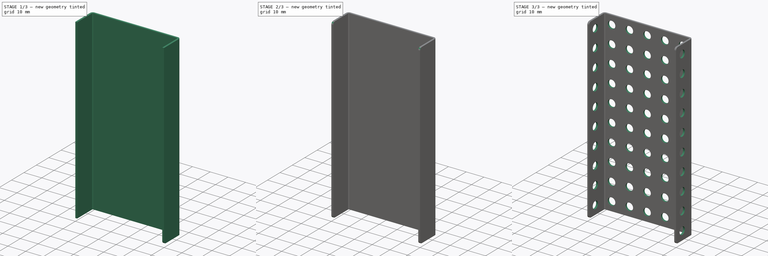
[diagram: build sequence overview — one tinted view per stage of 3, left to right]
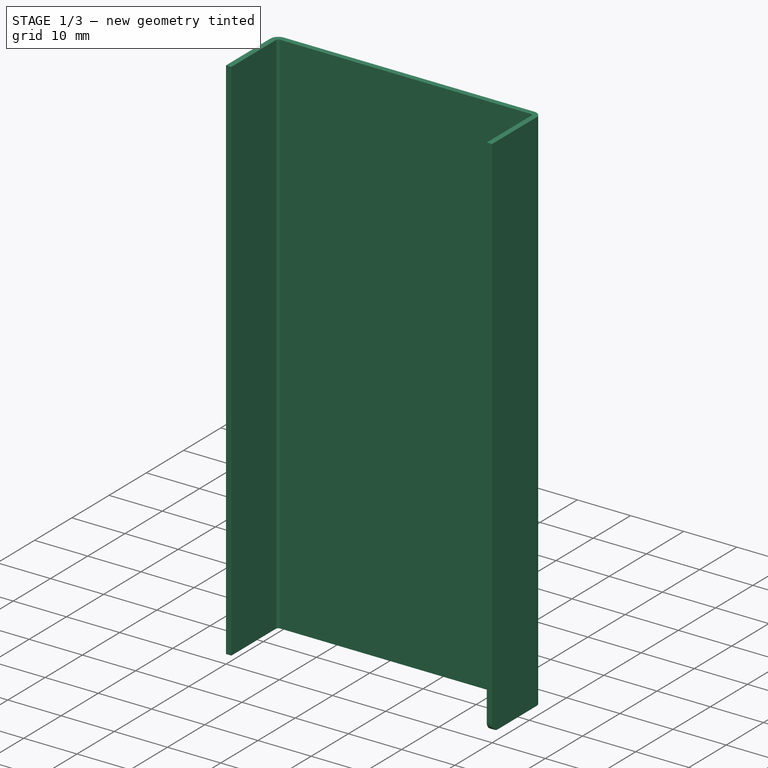
[diagram: stage 1 of 3 — iso view after this stage's code; geometry added in this stage tinted green]
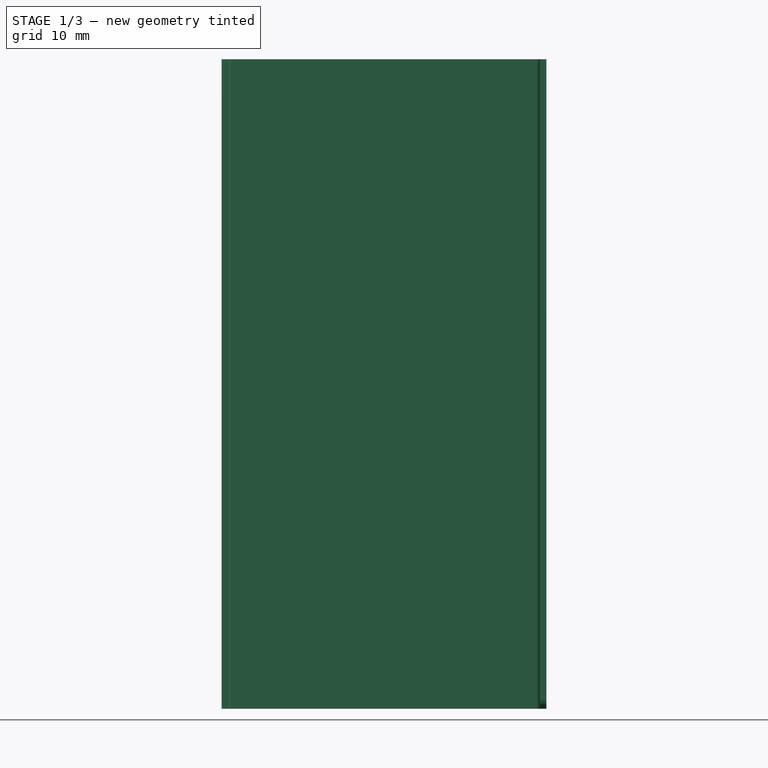
[diagram: stage 1 of 3 — front view after this stage's code; geometry added in this stage tinted green]
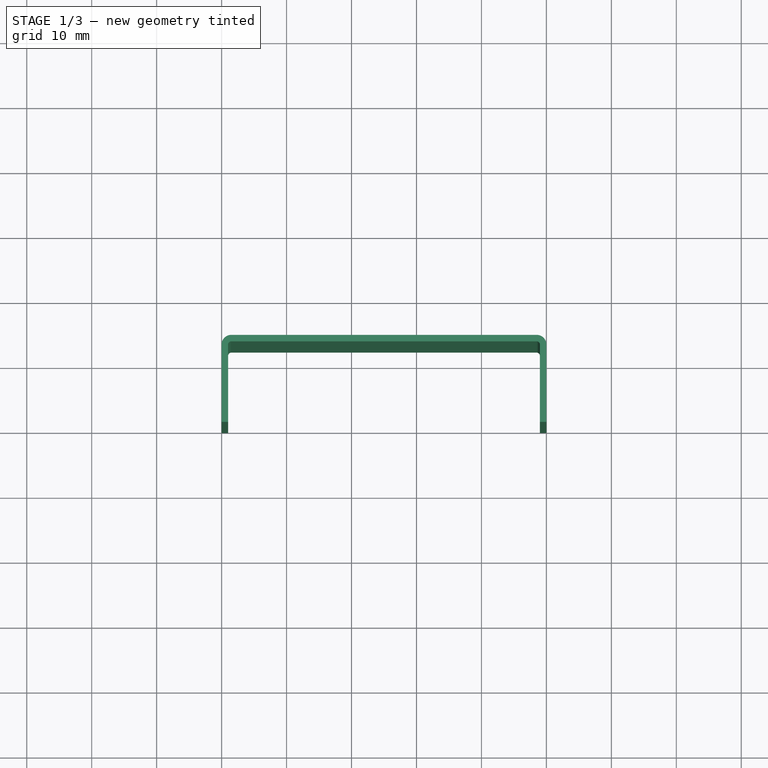
[diagram: stage 1 of 3 — top view after this stage's code; geometry added in this stage tinted green]
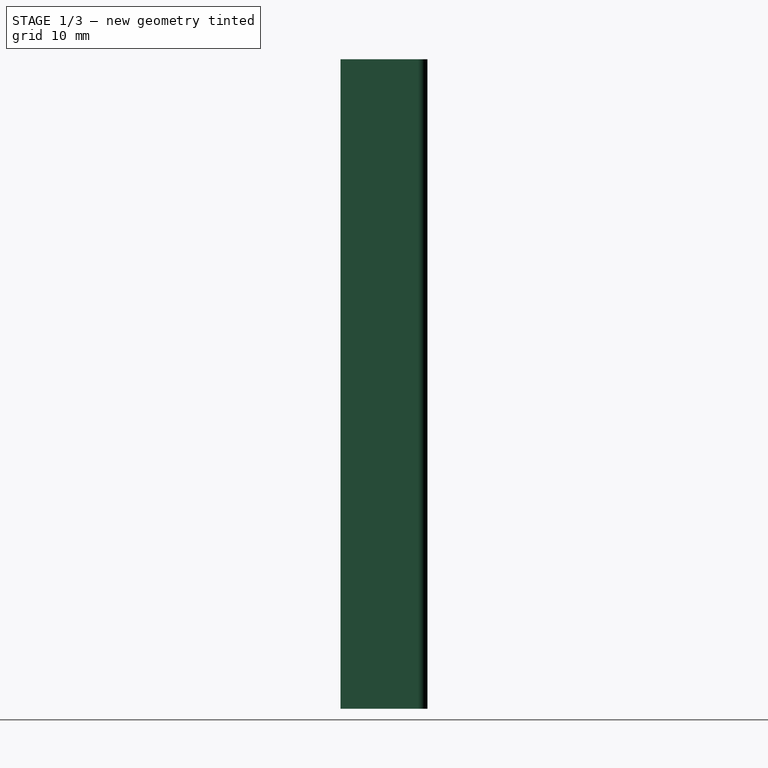
[diagram: stage 1 of 3 — right view after this stage's code; geometry added in this stage tinted green]
FCSTD DOCUMENT  (FreeCAD 0.16RUnknown)
Label: skoba_1_10_1
License: All rights reserved
LicenseURL: http://en.wikipedia.org/wiki/All_rights_reserved
objects: PartDesign::Fillet×4, Sketcher::SketchObject×3, PartDesign::Pocket×2, PartDesign::Pad×1
note: 13 computed .brp shape members not serialized (recipe doc carries the construction recipe); baked Part::Feature solids carry a one-line shape summary decoded from their .brp

FEATURE [Sketcher::SketchObject] Sketch
  sketch-geometry (12):
    g0: LineSegment StartX=0 StartY=0 StartZ=0 EndX=0 EndY=11.9 EndZ=0
    g1: LineSegment StartX=1.5 StartY=13.4 StartZ=0 EndX=48.5 EndY=13.4 EndZ=0
    g2: LineSegment StartX=50 StartY=11.9 StartZ=0 EndX=50 EndY=0 EndZ=0
    g3: ArcOfCircle CenterX=1.5 CenterY=11.9 CenterZ=0 NormalX=0 NormalY=0 NormalZ=1 Radius=1.5 StartAngle=1.5708 EndAngle=3.14159
    g4: ArcOfCircle CenterX=48.5 CenterY=11.9 CenterZ=0 NormalX=0 NormalY=0 NormalZ=1 Radius=1.5 StartAngle=0 EndAngle=1.5708
    g5: LineSegment StartX=0 StartY=0 StartZ=0 EndX=1 EndY=0 EndZ=0
    g6: LineSegment StartX=1 StartY=0 StartZ=0 EndX=1 EndY=11.9 EndZ=0
    g7: LineSegment StartX=1.5 StartY=12.4 StartZ=0 EndX=48.5 EndY=12.4 EndZ=0
    g8: LineSegment StartX=49 StartY=11.9 StartZ=0 EndX=49 EndY=0 EndZ=0
    g9: LineSegment StartX=49 StartY=0 StartZ=0 EndX=50 EndY=0 EndZ=0
    g10: ArcOfCircle CenterX=1.5 CenterY=11.9 CenterZ=0 NormalX=0 NormalY=0 NormalZ=1 Radius=0.5 StartAngle=1.5708 EndAngle=3.14159
    g11: ArcOfCircle CenterX=48.5 CenterY=11.9 CenterZ=0 NormalX=0 NormalY=0 NormalZ=1 Radius=0.5 StartAngle=0 EndAngle=1.5708
  constraints (32):
    c: PointOnObject(g0,g-1)
    c: Vertical(g0)
    c: Horizontal(g1)
    c: PointOnObject(g2,g-1)
    c: Vertical(g2)
    c: Tangent(g0,g3) = 1.5708
    c: Tangent(g1,g3) = 1.5708
    c: Tangent(g1,g4) = 1.5708
    c: Tangent(g2,g4) = 1.5708
    c: Radius(g3) = 1.5
    c: Equal(g3,g4)
    c: DistanceX(g0,g2) = 50
    c: DistanceY(g2,g1) = 13.4
    c: Coincident(g0,g-1)
    c: Coincident(g5,g-1)
    c: PointOnObject(g5,g-1)
    c: Coincident(g5,g6)
    c: Vertical(g6)
    c: Horizontal(g7)
    c: Vertical(g8)
    c: Coincident(g8,g9)
    c: Horizontal(g9)
    c: Coincident(g9,g2)
    c: DistanceX(g5,g5) = 1
    c: DistanceX(g9,g9) = 1
    c: Tangent(g6,g10) = 1.5708
    c: Tangent(g7,g10) = 1.5708
    c: Radius(g10) = 0.5
    c: DistanceY(g7,g1) = 1
    c: Tangent(g7,g11) = 1.5708
    c: Tangent(g8,g11) = 1.5708
    c: Radius(g11) = 0.5
FEATURE [PartDesign::Pad] Pad
  Length = 100
  Length2 = 100
  Sketch = -> Sketch
  Type = 0
FEATURE [PartDesign::Fillet] Fillet
  Base = -> Pad [Edge18]
  Radius = 1.5
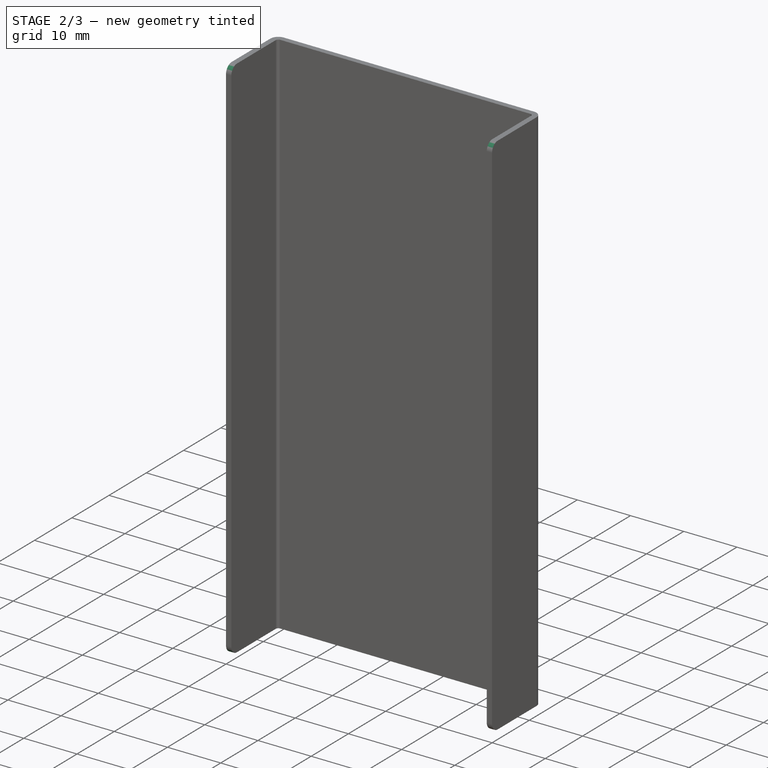
[diagram: stage 2 of 3 — iso view after this stage's code; geometry added in this stage tinted green]
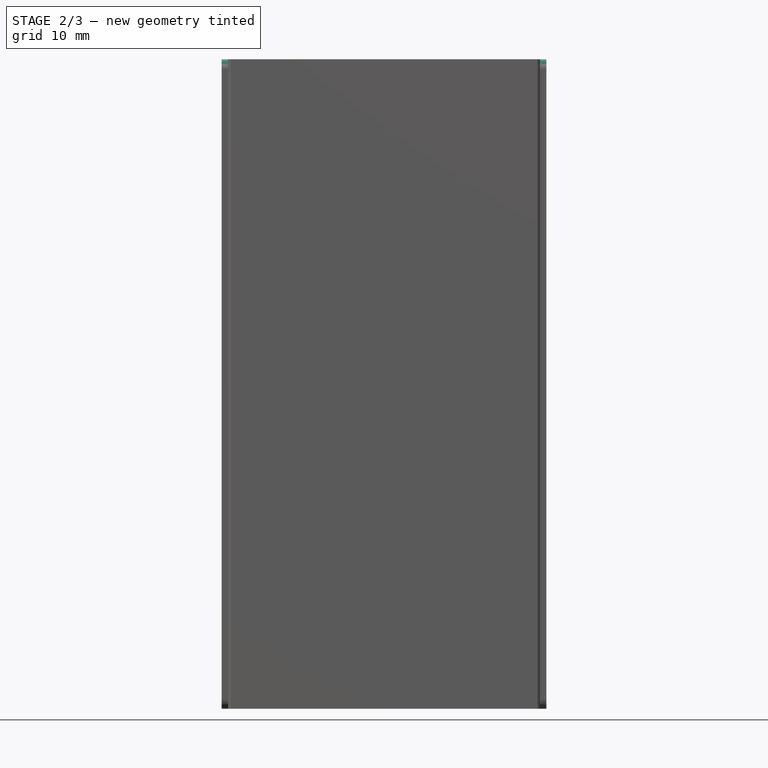
[diagram: stage 2 of 3 — front view after this stage's code; geometry added in this stage tinted green]
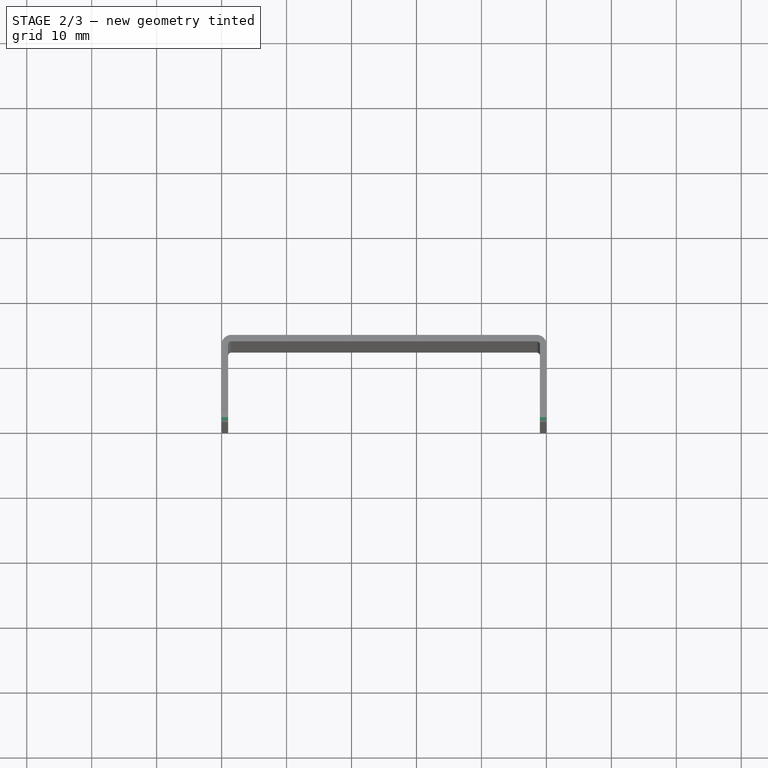
[diagram: stage 2 of 3 — top view after this stage's code; geometry added in this stage tinted green]
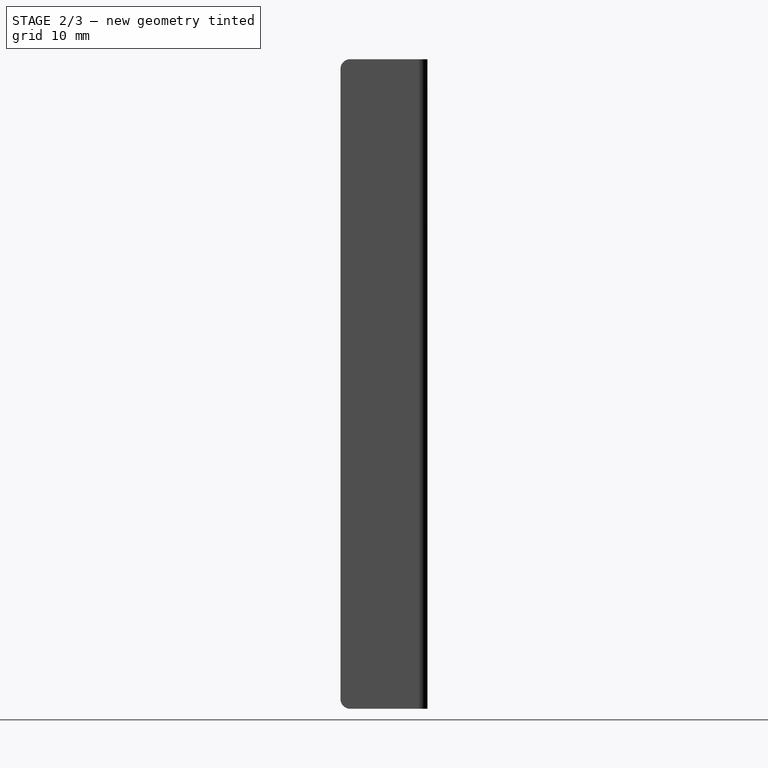
[diagram: stage 2 of 3 — right view after this stage's code; geometry added in this stage tinted green]
FEATURE [PartDesign::Fillet] Fillet001
  Base = -> Fillet [Edge29]
  Radius = 1.5
FEATURE [PartDesign::Fillet] Fillet002
  Base = -> Fillet001 [Edge42]
  Radius = 1.5
FEATURE [PartDesign::Fillet] Fillet003
  Base = -> Fillet002 [Edge22]
  Radius = 1.5
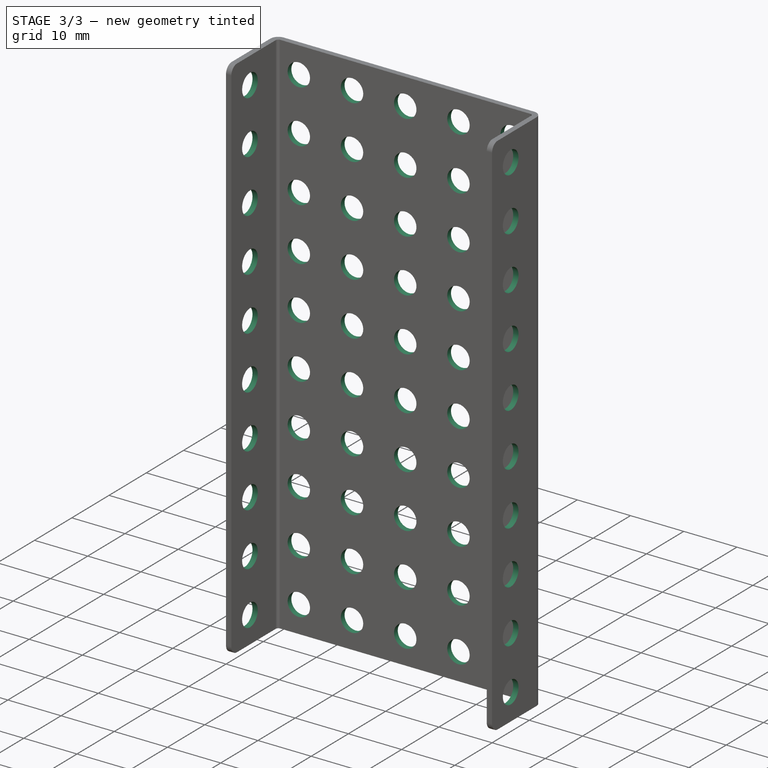
[diagram: stage 3 of 3 — iso view after this stage's code; geometry added in this stage tinted green]
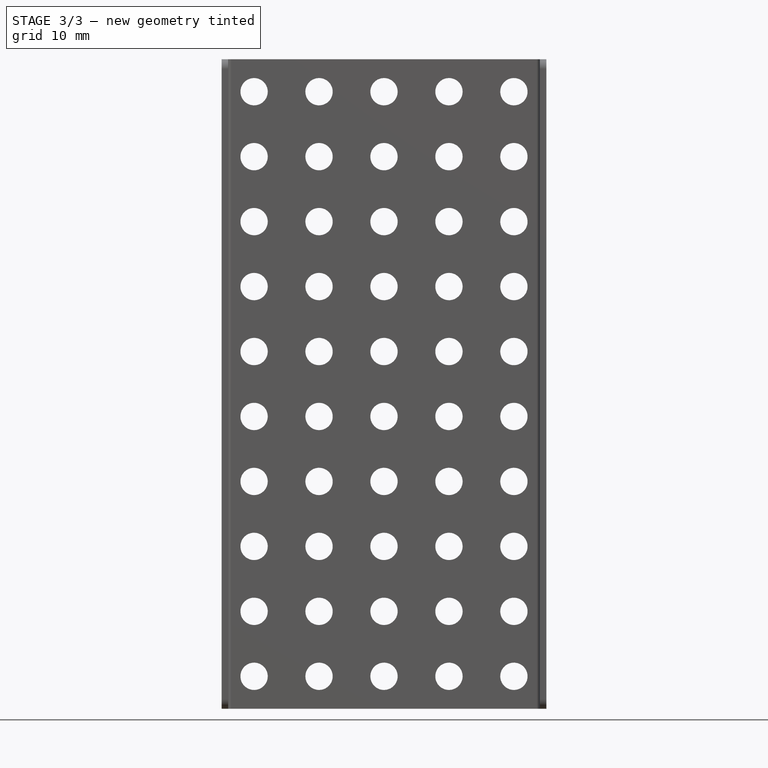
[diagram: stage 3 of 3 — front view after this stage's code; geometry added in this stage tinted green]
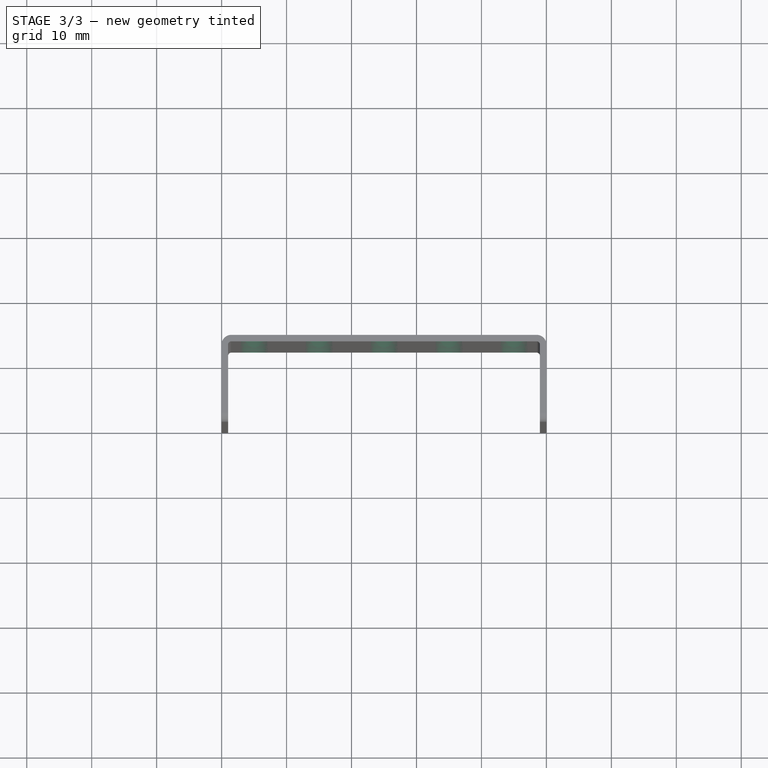
[diagram: stage 3 of 3 — top view after this stage's code; geometry added in this stage tinted green]
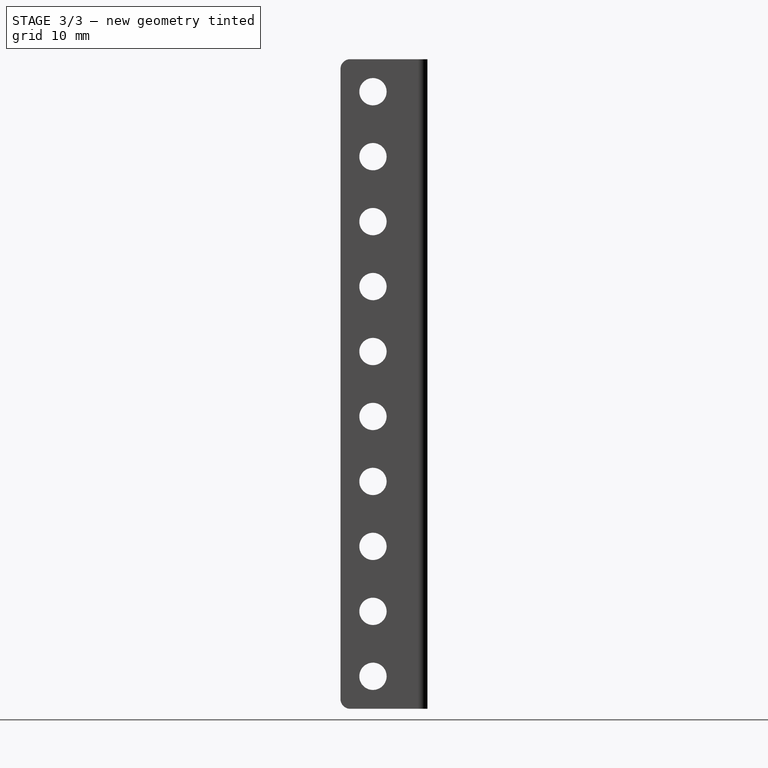
[diagram: stage 3 of 3 — right view after this stage's code; geometry added in this stage tinted green]
FEATURE [Sketcher::SketchObject] Sketch001
  Placement = pos=(0,0,0) rot=(0.57735,-0.57735,-0.57735;2.0944rad)
  Support = -> Fillet003 [Face2]
  sketch-geometry (19):
    g0: Circle CenterX=-5 CenterY=5 CenterZ=0 NormalX=0 NormalY=0 NormalZ=1 Radius=2.1
    g1: Circle CenterX=-5 CenterY=15 CenterZ=0 NormalX=0 NormalY=0 NormalZ=1 Radius=2.1
    g2: LineSegment [constr] StartX=-5 StartY=5 StartZ=0 EndX=-5 EndY=15 EndZ=0
    g3: Circle CenterX=-5 CenterY=25 CenterZ=0 NormalX=0 NormalY=0 NormalZ=1 Radius=2.1
    g4: LineSegment [constr] StartX=-5 StartY=15 StartZ=0 EndX=-5 EndY=25 EndZ=0
    g5: Circle CenterX=-5 CenterY=35 CenterZ=0 NormalX=0 NormalY=0 NormalZ=1 Radius=2.1
    g6: LineSegment [constr] StartX=-5 StartY=25 StartZ=0 EndX=-5 EndY=35 EndZ=0
    g7: Circle CenterX=-5 CenterY=45 CenterZ=0 NormalX=0 NormalY=0 NormalZ=1 Radius=2.1
    g8: LineSegment [constr] StartX=-5 StartY=35 StartZ=0 EndX=-5 EndY=45 EndZ=0
    g9: Circle CenterX=-5 CenterY=55 CenterZ=0 NormalX=0 NormalY=0 NormalZ=1 Radius=2.1
    g10: LineSegment [constr] StartX=-5 StartY=45 StartZ=0 EndX=-5 EndY=55 EndZ=0
    g11: Circle CenterX=-5 CenterY=65 CenterZ=0 NormalX=0 NormalY=0 NormalZ=1 Radius=2.1
    g12: LineSegment [constr] StartX=-5 StartY=55 StartZ=0 EndX=-5 EndY=65 EndZ=0
    g13: Circle CenterX=-5 CenterY=75 CenterZ=0 NormalX=0 NormalY=0 NormalZ=1 Radius=2.1
    g14: LineSegment [constr] StartX=-5 StartY=65 StartZ=0 EndX=-5 EndY=75 EndZ=0
    g15: Circle CenterX=-5 CenterY=85 CenterZ=0 NormalX=0 NormalY=0 NormalZ=1 Radius=2.1
    g16: LineSegment [constr] StartX=-5 StartY=75 StartZ=0 EndX=-5 EndY=85 EndZ=0
    g17: Circle CenterX=-5 CenterY=95 CenterZ=0 NormalX=0 NormalY=0 NormalZ=1 Radius=2.1
    g18: LineSegment [constr] StartX=-5 StartY=85 StartZ=0 EndX=-5 EndY=95 EndZ=0
  constraints (48):
    c: Radius(g0) = 2.1
    c: DistanceX(g0) = -5
    c: DistanceY(g0) = 5
    c: Equal(g0,g1) = 2.1
    c: Coincident(g0,g2)
    c: Coincident(g1,g2)
    c: Distance(g2) = 10
    c: Angle(g2) = 1.5708
    c: Equal(g0,g3) = 2.1
    c: Coincident(g1,g4)
    c: Coincident(g3,g4)
    c: Equal(g2,g4)
    c: Parallel(g4,g2)
    c: Equal(g0,g5) = 2.1
    c: Coincident(g3,g6)
    c: Coincident(g5,g6)
    c: Equal(g2,g6)
    c: Parallel(g6,g2)
    c: Equal(g0,g7) = 2.1
    c: Coincident(g5,g8)
    c: Coincident(g7,g8)
    c: Equal(g2,g8)
    c: Parallel(g8,g2)
    c: Equal(g0,g9) = 2.1
    c: Coincident(g7,g10)
    c: Coincident(g9,g10)
    c: Equal(g2,g10)
    c: Parallel(g10,g2)
    c: Equal(g0,g11) = 2.1
    c: Coincident(g9,g12)
    c: Coincident(g11,g12)
    c: Equal(g2,g12)
    c: Parallel(g12,g2)
    c: Equal(g0,g13) = 2.1
    c: Coincident(g11,g14)
    c: Coincident(g13,g14)
    c: Equal(g2,g14)
    c: Parallel(g14,g2)
    c: Equal(g0,g15) = 2.1
    c: Coincident(g13,g16)
    c: Coincident(g15,g16)
    c: Equal(g2,g16)
    c: Parallel(g16,g2)
    c: Equal(g0,g17) = 2.1
    c: Coincident(g15,g18)
    c: Coincident(g17,g18)
    c: Equal(g2,g18)
    c: Parallel(g18,g2)
FEATURE [PartDesign::Pocket] Pocket
  Length = 5
  Sketch = -> Sketch001
  Type = 1
FEATURE [Sketcher::SketchObject] Sketch002
  Placement = pos=(0,13.4,0) rot=(0,0.707107,0.707107;3.14159rad)
  Support = -> Pocket [Face6]
  sketch-geometry (99):
    g0: Circle CenterX=-5 CenterY=5 CenterZ=0 NormalX=0 NormalY=0 NormalZ=1 Radius=2.1
    g1: Circle CenterX=-15 CenterY=5 CenterZ=0 NormalX=0 NormalY=0 NormalZ=1 Radius=2.1
    g2: LineSegment [constr] StartX=-5 StartY=5 StartZ=0 EndX=-15 EndY=5 EndZ=0
    g3: Circle CenterX=-25 CenterY=5 CenterZ=0 NormalX=0 NormalY=0 NormalZ=1 Radius=2.1
    g4: LineSegment [constr] StartX=-15 StartY=5 StartZ=0 EndX=-25 EndY=5 EndZ=0
    g5: Circle CenterX=-35 CenterY=5 CenterZ=0 NormalX=0 NormalY=0 NormalZ=1 Radius=2.1
    g6: LineSegment [constr] StartX=-25 StartY=5 StartZ=0 EndX=-35 EndY=5 EndZ=0
    g7: Circle CenterX=-45 CenterY=5 CenterZ=0 NormalX=0 NormalY=0 NormalZ=1 Radius=2.1
    g8: LineSegment [constr] StartX=-35 StartY=5 StartZ=0 EndX=-45 EndY=5 EndZ=0
    g9: Circle CenterX=-45 CenterY=15 CenterZ=0 NormalX=0 NormalY=0 NormalZ=1 Radius=2.1
    g10: LineSegment [constr] StartX=-45 StartY=5 StartZ=0 EndX=-45 EndY=15 EndZ=0
    g11: Circle CenterX=-45 CenterY=25 CenterZ=0 NormalX=0 NormalY=0 NormalZ=1 Radius=2.1
    g12: LineSegment [constr] StartX=-45 StartY=15 StartZ=0 EndX=-45 EndY=25 EndZ=0
    g13: Circle CenterX=-45 CenterY=35 CenterZ=0 NormalX=0 NormalY=0 NormalZ=1 Radius=2.1
    g14: LineSegment [constr] StartX=-45 StartY=25 StartZ=0 EndX=-45 EndY=35 EndZ=0
    g15: Circle CenterX=-45 CenterY=45 CenterZ=0 NormalX=0 NormalY=0 NormalZ=1 Radius=2.1
    g16: LineSegment [constr] StartX=-45 StartY=35 StartZ=0 EndX=-45 EndY=45 EndZ=0
    g17: Circle CenterX=-45 CenterY=55 CenterZ=0 NormalX=0 NormalY=0 NormalZ=1 Radius=2.1
    g18: LineSegment [constr] StartX=-45 StartY=45 StartZ=0 EndX=-45 EndY=55 EndZ=0
    g19: Circle CenterX=-45 CenterY=65 CenterZ=0 NormalX=0 NormalY=0 NormalZ=1 Radius=2.1
    g20: LineSegment [constr] StartX=-45 StartY=55 StartZ=0 EndX=-45 EndY=65 EndZ=0
    g21: Circle CenterX=-45 CenterY=75 CenterZ=0 NormalX=0 NormalY=0 NormalZ=1 Radius=2.1
    g22: LineSegment [constr] StartX=-45 StartY=65 StartZ=0 EndX=-45 EndY=75 EndZ=0
    g23: Circle CenterX=-45 CenterY=85 CenterZ=0 NormalX=0 NormalY=0 NormalZ=1 Radius=2.1
    g24: LineSegment [constr] StartX=-45 StartY=75 StartZ=0 EndX=-45 EndY=85 EndZ=0
    g25: Circle CenterX=-45 CenterY=95 CenterZ=0 NormalX=0 NormalY=0 NormalZ=1 Radius=2.1
    g26: LineSegment [constr] StartX=-45 StartY=85 StartZ=0 EndX=-45 EndY=95 EndZ=0
    g27: Circle CenterX=-35 CenterY=15 CenterZ=0 NormalX=0 NormalY=0 NormalZ=1 Radius=2.1
    g28: LineSegment [constr] StartX=-35 StartY=5 StartZ=0 EndX=-35 EndY=15 EndZ=0
    g29: Circle CenterX=-35 CenterY=25 CenterZ=0 NormalX=0 NormalY=0 NormalZ=1 Radius=2.1
    g30: LineSegment [constr] StartX=-35 StartY=15 StartZ=0 EndX=-35 EndY=25 EndZ=0
    g31: Circle CenterX=-35 CenterY=35 CenterZ=0 NormalX=0 NormalY=0 NormalZ=1 Radius=2.1
    g32: LineSegment [constr] StartX=-35 StartY=25 StartZ=0 EndX=-35 EndY=35 EndZ=0
    g33: Circle CenterX=-35 CenterY=45 CenterZ=0 NormalX=0 NormalY=0 NormalZ=1 Radius=2.1
    g34: LineSegment [constr] StartX=-35 StartY=35 StartZ=0 EndX=-35 EndY=45 EndZ=0
    g35: Circle CenterX=-35 CenterY=55 CenterZ=0 NormalX=0 NormalY=0 NormalZ=1 Radius=2.1
    g36: LineSegment [constr] StartX=-35 StartY=45 StartZ=0 EndX=-35 EndY=55 EndZ=0
    g37: Circle CenterX=-35 CenterY=65 CenterZ=0 NormalX=0 NormalY=0 NormalZ=1 Radius=2.1
    g38: LineSegment [constr] StartX=-35 StartY=55 StartZ=0 EndX=-35 EndY=65 EndZ=0
    g39: Circle CenterX=-35 CenterY=75 CenterZ=0 NormalX=0 NormalY=0 NormalZ=1 Radius=2.1
    g40: LineSegment [constr] StartX=-35 StartY=65 StartZ=0 EndX=-35 EndY=75 EndZ=0
    g41: Circle CenterX=-35 CenterY=85 CenterZ=0 NormalX=0 NormalY=0 NormalZ=1 Radius=2.1
    g42: LineSegment [constr] StartX=-35 StartY=75 StartZ=0 EndX=-35 EndY=85 EndZ=0
    g43: Circle CenterX=-35 CenterY=95 CenterZ=0 NormalX=0 NormalY=0 NormalZ=1 Radius=2.1
    g44: LineSegment [constr] StartX=-35 StartY=85 StartZ=0 EndX=-35 EndY=95 EndZ=0
    g45: Circle CenterX=-25 CenterY=15 CenterZ=0 NormalX=0 NormalY=0 NormalZ=1 Radius=2.1
    g46: LineSegment [constr] StartX=-25 StartY=5 StartZ=0 EndX=-25 EndY=15 EndZ=0
    g47: Circle CenterX=-25 CenterY=25 CenterZ=0 NormalX=0 NormalY=0 NormalZ=1 Radius=2.1
    g48: LineSegment [constr] StartX=-25 StartY=15 StartZ=0 EndX=-25 EndY=25 EndZ=0
    g49: Circle CenterX=-25 CenterY=35 CenterZ=0 NormalX=0 NormalY=0 NormalZ=1 Radius=2.1
    g50: LineSegment [constr] StartX=-25 StartY=25 StartZ=0 EndX=-25 EndY=35 EndZ=0
    g51: Circle CenterX=-25 CenterY=45 CenterZ=0 NormalX=0 NormalY=0 NormalZ=1 Radius=2.1
    g52: LineSegment [constr] StartX=-25 StartY=35 StartZ=0 EndX=-25 EndY=45 EndZ=0
    g53: Circle CenterX=-25 CenterY=55 CenterZ=0 NormalX=0 NormalY=0 NormalZ=1 Radius=2.1
    g54: LineSegment [constr] StartX=-25 StartY=45 StartZ=0 EndX=-25 EndY=55 EndZ=0
    g55: Circle CenterX=-25 CenterY=65 CenterZ=0 NormalX=0 NormalY=0 NormalZ=1 Radius=2.1
    g56: LineSegment [constr] StartX=-25 StartY=55 StartZ=0 EndX=-25 EndY=65 EndZ=0
    g57: Circle CenterX=-25 CenterY=75 CenterZ=0 NormalX=0 NormalY=0 NormalZ=1 Radius=2.1
    g58: LineSegment [constr] StartX=-25 StartY=65 StartZ=0 EndX=-25 EndY=75 EndZ=0
    g59: Circle CenterX=-25 CenterY=85 CenterZ=0 NormalX=0 NormalY=0 NormalZ=1 Radius=2.1
    g60: LineSegment [constr] StartX=-25 StartY=75 StartZ=0 EndX=-25 EndY=85 EndZ=0
    g61: Circle CenterX=-25 CenterY=95 CenterZ=0 NormalX=0 NormalY=0 NormalZ=1 Radius=2.1
    g62: LineSegment [constr] StartX=-25 StartY=85 StartZ=0 EndX=-25 EndY=95 EndZ=0
    g63: Circle CenterX=-15 CenterY=15 CenterZ=0 NormalX=0 NormalY=0 NormalZ=1 Radius=2.1
    g64: LineSegment [constr] StartX=-15 StartY=5 StartZ=0 EndX=-15 EndY=15 EndZ=0
    g65: Circle CenterX=-15 CenterY=25 CenterZ=0 NormalX=0 NormalY=0 NormalZ=1 Radius=2.1
    g66: LineSegment [constr] StartX=-15 StartY=15 StartZ=0 EndX=-15 EndY=25 EndZ=0
    g67: Circle CenterX=-15 CenterY=35 CenterZ=0 NormalX=0 NormalY=0 NormalZ=1 Radius=2.1
    g68: LineSegment [constr] StartX=-15 StartY=25 StartZ=0 EndX=-15 EndY=35 EndZ=0
    g69: Circle CenterX=-15 CenterY=45 CenterZ=0 NormalX=0 NormalY=0 NormalZ=1 Radius=2.1
    g70: LineSegment [constr] StartX=-15 StartY=35 StartZ=0 EndX=-15 EndY=45 EndZ=0
    g71: Circle CenterX=-15 CenterY=55 CenterZ=0 NormalX=0 NormalY=0 NormalZ=1 Radius=2.1
    g72: LineSegment [constr] StartX=-15 StartY=45 StartZ=0 EndX=-15 EndY=55 EndZ=0
    g73: Circle CenterX=-15 CenterY=65 CenterZ=0 NormalX=0 NormalY=0 NormalZ=1 Radius=2.1
    g74: LineSegment [constr] StartX=-15 StartY=55 StartZ=0 EndX=-15 EndY=65 EndZ=0
    g75: Circle CenterX=-15 CenterY=75 CenterZ=0 NormalX=0 NormalY=0 NormalZ=1 Radius=2.1
    g76: LineSegment [constr] StartX=-15 StartY=65 StartZ=0 EndX=-15 EndY=75 EndZ=0
    g77: Circle CenterX=-15 CenterY=85 CenterZ=0 NormalX=0 NormalY=0 NormalZ=1 Radius=2.1
    g78: LineSegment [constr] StartX=-15 StartY=75 StartZ=0 EndX=-15 EndY=85 EndZ=0
    g79: Circle CenterX=-15 CenterY=95 CenterZ=0 NormalX=0 NormalY=0 NormalZ=1 Radius=2.1
    g80: LineSegment [constr] StartX=-15 StartY=85 StartZ=0 EndX=-15 EndY=95 EndZ=0
    g81: Circle CenterX=-5 CenterY=15 CenterZ=0 NormalX=0 NormalY=0 NormalZ=1 Radius=2.1
    g82: LineSegment [constr] StartX=-5 StartY=5 StartZ=0 EndX=-5 EndY=15 EndZ=0
    g83: Circle CenterX=-5 CenterY=25 CenterZ=0 NormalX=0 NormalY=0 NormalZ=1 Radius=2.1
    g84: LineSegment [constr] StartX=-5 StartY=15 StartZ=0 EndX=-5 EndY=25 EndZ=0
    g85: Circle CenterX=-5 CenterY=35 CenterZ=0 NormalX=0 NormalY=0 NormalZ=1 Radius=2.1
    g86: LineSegment [constr] StartX=-5 StartY=25 StartZ=0 EndX=-5 EndY=35 EndZ=0
    g87: Circle CenterX=-5 CenterY=45 CenterZ=0 NormalX=0 NormalY=0 NormalZ=1 Radius=2.1
    g88: LineSegment [constr] StartX=-5 StartY=35 StartZ=0 EndX=-5 EndY=45 EndZ=0
    g89: Circle CenterX=-5 CenterY=55 CenterZ=0 NormalX=0 NormalY=0 NormalZ=1 Radius=2.1
    g90: LineSegment [constr] StartX=-5 StartY=45 StartZ=0 EndX=-5 EndY=55 EndZ=0
    g91: Circle CenterX=-5 CenterY=65 CenterZ=0 NormalX=0 NormalY=0 NormalZ=1 Radius=2.1
    g92: LineSegment [constr] StartX=-5 StartY=55 StartZ=0 EndX=-5 EndY=65 EndZ=0
    g93: Circle CenterX=-5 CenterY=75 CenterZ=0 NormalX=0 NormalY=0 NormalZ=1 Radius=2.1
    g94: LineSegment [constr] StartX=-5 StartY=65 StartZ=0 EndX=-5 EndY=75 EndZ=0
    g95: Circle CenterX=-5 CenterY=85 CenterZ=0 NormalX=0 NormalY=0 NormalZ=1 Radius=2.1
    g96: LineSegment [constr] StartX=-5 StartY=75 StartZ=0 EndX=-5 EndY=85 EndZ=0
    g97: Circle CenterX=-5 CenterY=95 CenterZ=0 NormalX=0 NormalY=0 NormalZ=1 Radius=2.1
    g98: LineSegment [constr] StartX=-5 StartY=85 StartZ=0 EndX=-5 EndY=95 EndZ=0
  constraints (212):
    c: Radius(g0) = 2.1
    c: DistanceX(g0) = -5
    c: DistanceY(g0) = 5
    c: Equal(g0,g1) = 2.1
    c: Coincident(g0,g2)
    c: Coincident(g1,g2)
    c: Distance(g2) = 10
    c: Angle(g2) = 3.14159
    c: Equal(g0,g3) = 2.1
    c: Coincident(g1,g4)
    c: Coincident(g3,g4)
    c: Equal(g2,g4)
    c: Parallel(g4,g2)
    c: Equal(g0,g5) = 2.1
    c: Coincident(g3,g6)
    c: Coincident(g5,g6)
    c: Equal(g2,g6)
    c: Parallel(g6,g2)
    c: Equal(g0,g7) = 2.1
    c: Coincident(g5,g8)
    c: Coincident(g7,g8)
    c: Equal(g2,g8)
    c: Parallel(g8,g2)
    c: Coincident(g7,g10)
    c: Coincident(g9,g10)
    c: Distance(g10) = 10
    c: Angle(g10) = 1.5708
    c: Coincident(g9,g12)
    c: Coincident(g11,g12)
    c: Equal(g10,g12)
    c: Parallel(g12,g10)
    c: Coincident(g11,g14)
    c: Coincident(g13,g14)
    c: Equal(g10,g14)
    c: Parallel(g14,g10)
    c: Coincident(g13,g16)
    c: Coincident(g15,g16)
    c: Equal(g10,g16)
    c: Parallel(g16,g10)
    c: Coincident(g15,g18)
    c: Coincident(g17,g18)
    c: Equal(g10,g18)
    c: Parallel(g18,g10)
    c: Coincident(g17,g20)
    c: Coincident(g19,g20)
    c: Equal(g10,g20)
    c: Parallel(g20,g10)
    c: Coincident(g19,g22)
    c: Coincident(g21,g22)
    c: Equal(g10,g22)
    c: Parallel(g22,g10)
    c: Coincident(g21,g24)
    c: Coincident(g23,g24)
    c: Equal(g10,g24)
    c: Parallel(g24,g10)
    c: Coincident(g23,g26)
    c: Coincident(g25,g26)
    c: Equal(g10,g26)
    c: Parallel(g26,g10)
    c: Coincident(g5,g28)
    c: Coincident(g27,g28)
    c: Distance(g28) = 10
    c: Angle(g28) = 1.5708
    c: Coincident(g27,g30)
    c: Coincident(g29,g30)
    c: Equal(g28,g30)
    c: Parallel(g30,g28)
    c: Coincident(g29,g32)
    c: Coincident(g31,g32)
    c: Equal(g28,g32)
    c: Parallel(g32,g28)
    c: Coincident(g31,g34)
    c: Coincident(g33,g34)
    c: Equal(g28,g34)
    c: Parallel(g34,g28)
    c: Coincident(g33,g36)
    c: Coincident(g35,g36)
    c: Equal(g28,g36)
    c: Parallel(g36,g28)
    c: Coincident(g35,g38)
    c: Coincident(g37,g38)
    c: Equal(g28,g38)
    c: Parallel(g38,g28)
    c: Coincident(g37,g40)
    c: Coincident(g39,g40)
    c: Equal(g28,g40)
    c: Parallel(g40,g28)
    c: Coincident(g39,g42)
    c: Coincident(g41,g42)
    c: Equal(g28,g42)
    c: Parallel(g42,g28)
    c: Coincident(g41,g44)
    c: Coincident(g43,g44)
    c: Equal(g28,g44)
    c: Parallel(g44,g28)
    c: Coincident(g3,g46)
    c: Coincident(g45,g46)
    c: Distance(g46) = 10
    c: Angle(g46) = 1.5708
    c: Coincident(g45,g48)
    c: Coincident(g47,g48)
    c: Equal(g46,g48)
    c: Parallel(g48,g46)
    c: Coincident(g47,g50)
    c: Coincident(g49,g50)
    c: Equal(g46,g50)
    c: Parallel(g50,g46)
    c: Coincident(g49,g52)
    c: Coincident(g51,g52)
    c: Equal(g46,g52)
    c: Parallel(g52,g46)
    c: Coincident(g51,g54)
    c: Coincident(g53,g54)
    c: Equal(g46,g54)
    c: Parallel(g54,g46)
    c: Coincident(g53,g56)
    c: Coincident(g55,g56)
    c: Equal(g46,g56)
    c: Parallel(g56,g46)
    c: Coincident(g55,g58)
    c: Coincident(g57,g58)
    c: Equal(g46,g58)
    c: Parallel(g58,g46)
    c: Coincident(g57,g60)
    c: Coincident(g59,g60)
    c: Equal(g46,g60)
    c: Parallel(g60,g46)
    c: Coincident(g59,g62)
    c: Coincident(g61,g62)
    c: Equal(g46,g62)
    c: Parallel(g62,g46)
    c: Coincident(g1,g64)
    c: Coincident(g63,g64)
    c: Distance(g64) = 10
    c: Angle(g64) = 1.5708
    c: Coincident(g63,g66)
    c: Coincident(g65,g66)
    c: Equal(g64,g66)
    c: Parallel(g66,g64)
    c: Coincident(g65,g68)
    c: Coincident(g67,g68)
    c: Equal(g64,g68)
    c: Parallel(g68,g64)
    c: Coincident(g67,g70)
    c: Coincident(g69,g70)
    c: Equal(g64,g70)
    c: Parallel(g70,g64)
    c: Coincident(g69,g72)
    c: Coincident(g71,g72)
    c: Equal(g64,g72)
    c: Parallel(g72,g64)
    c: Coincident(g71,g74)
    c: Coincident(g73,g74)
    c: Equal(g64,g74)
    c: Parallel(g74,g64)
    c: Coincident(g73,g76)
    c: Coincident(g75,g76)
    c: Equal(g64,g76)
    c: Parallel(g76,g64)
    c: Coincident(g75,g78)
    c: Coincident(g77,g78)
    c: Equal(g64,g78)
    c: Parallel(g78,g64)
    c: Coincident(g77,g80)
    c: Coincident(g79,g80)
    c: Equal(g64,g80)
    c: Parallel(g80,g64)
    c: Equal(g0,g81) = 2.1
    c: Coincident(g0,g82)
    c: Coincident(g81,g82)
    c: Distance(g82) = 10
    c: Angle(g82) = 1.5708
    c: Equal(g0,g83) = 2.1
    c: Coincident(g81,g84)
    c: Coincident(g83,g84)
    c: Equal(g82,g84)
    c: Parallel(g84,g82)
    c: Equal(g0,g85) = 2.1
    c: Coincident(g83,g86)
    c: Coincident(g85,g86)
    c: Equal(g82,g86)
    c: Parallel(g86,g82)
    c: Equal(g0,g87) = 2.1
    c: Coincident(g85,g88)
    c: Coincident(g87,g88)
    c: Equal(g82,g88)
    c: Parallel(g88,g82)
    c: Equal(g0,g89) = 2.1
    c: Coincident(g87,g90)
    c: Coincident(g89,g90)
    c: Equal(g82,g90)
    c: Parallel(g90,g82)
    c: Equal(g0,g91) = 2.1
    c: Coincident(g89,g92)
    c: Coincident(g91,g92)
    c: Equal(g82,g92)
    c: Parallel(g92,g82)
    c: Equal(g0,g93) = 2.1
    c: Coincident(g91,g94)
    c: Coincident(g93,g94)
    c: Equal(g82,g94)
    c: Parallel(g94,g82)
    c: Equal(g0,g95) = 2.1
    c: Coincident(g93,g96)
    c: Coincident(g95,g96)
    c: Equal(g82,g96)
    c: Parallel(g96,g82)
    c: Equal(g0,g97) = 2.1
    c: Coincident(g95,g98)
    c: Coincident(g97,g98)
    c: Equal(g82,g98)
    c: Parallel(g98,g82)
FEATURE [PartDesign::Pocket] Pocket001
  Length = 5
  Sketch = -> Sketch002
  Type = 1
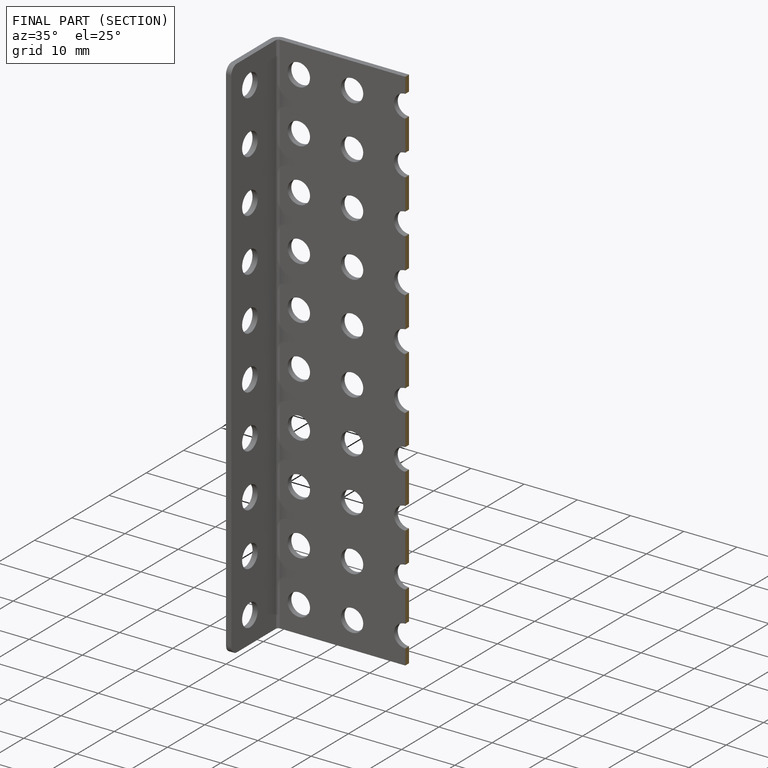
[diagram: finished part — half-section view (interior)]
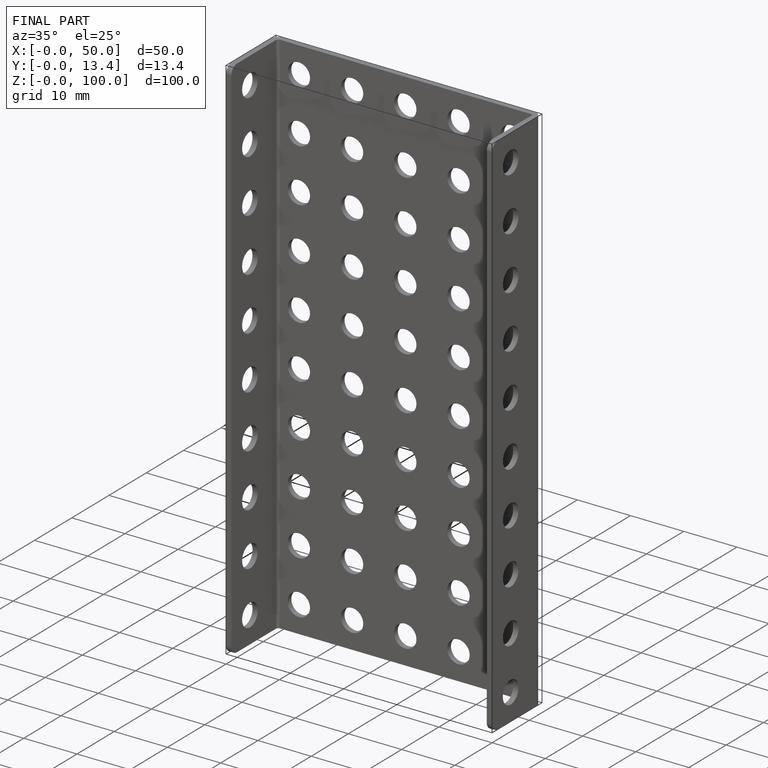
[diagram: finished part — iso view with bounding-box wireframe]
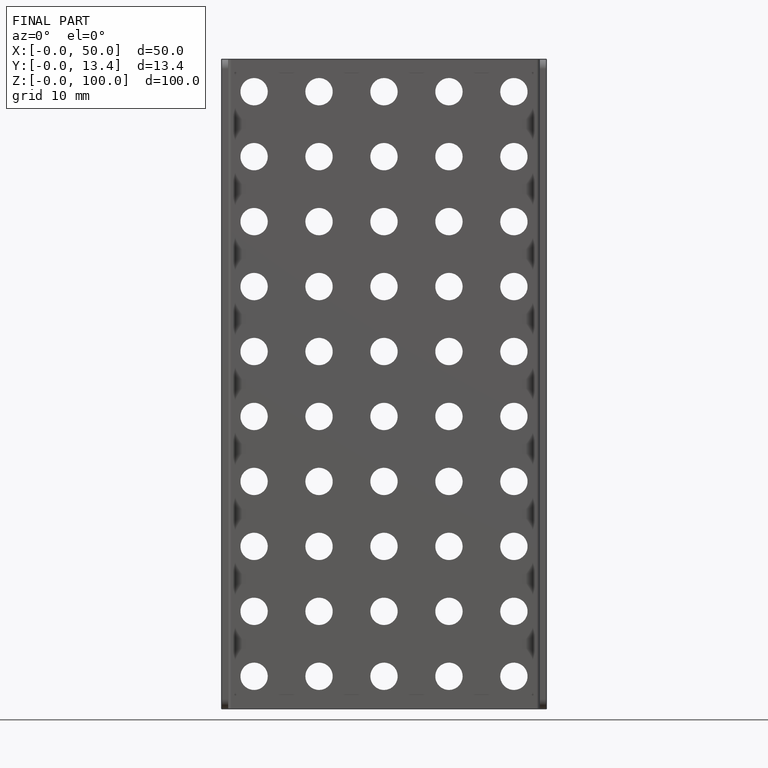
[diagram: finished part — front view with bounding-box wireframe]
